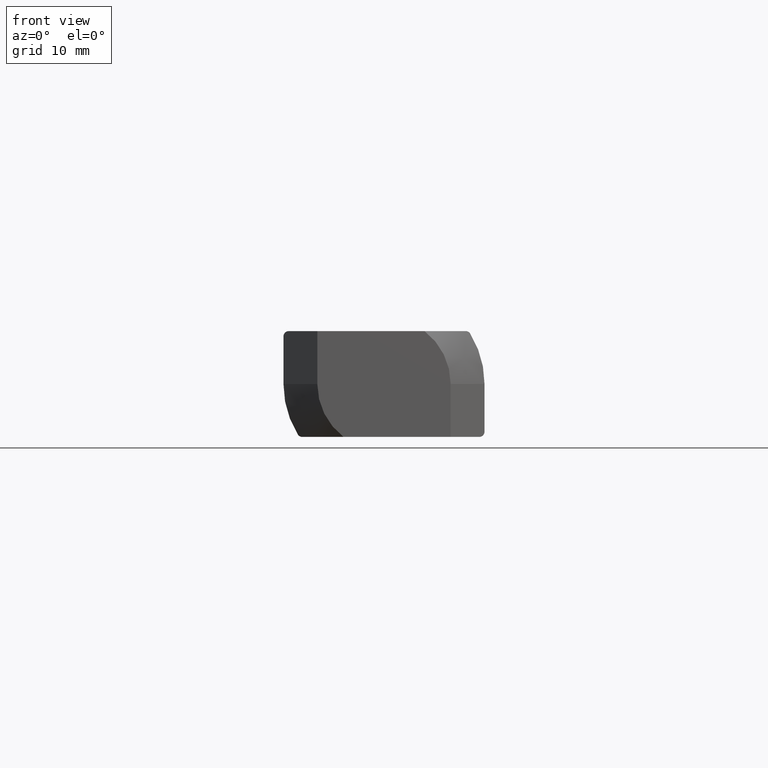
[diagram: clean part render]
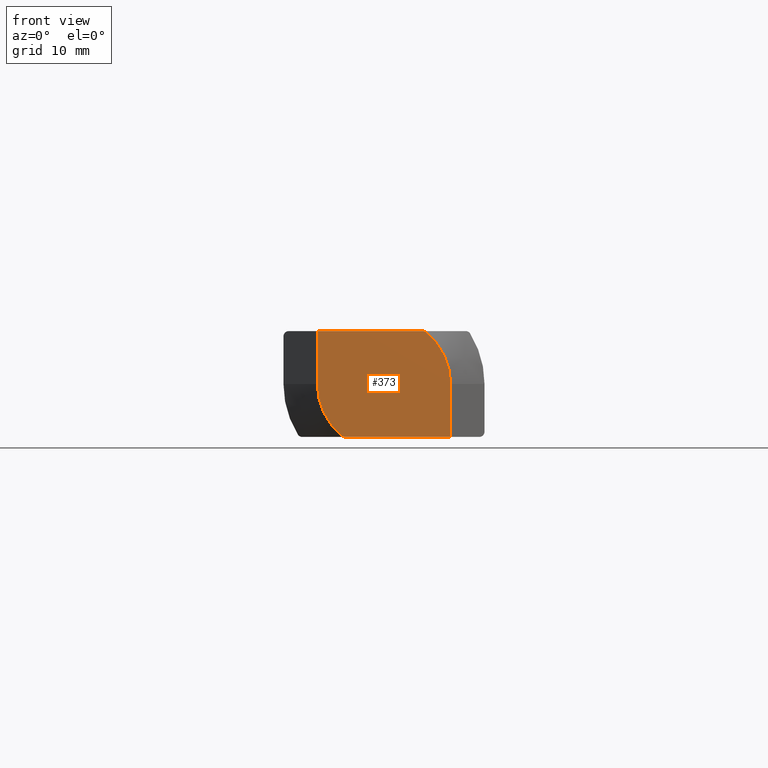
[diagram: same view with one face highlighted and labeled with its STEP entity id]
A machine part, front view. The second image highlights one B-rep face of the part: STEP entity #373.
In plain terms, the highlighted planar face has unit normal (0, 1, -0).
Its self-contained STEP definition (entity closure, byte-faithful):
#12 = DIRECTION ( 'NONE',  ( 0.000000000000000000, 0.000000000000000000, 1.000000000000000000 ) ) ;
#27 = VERTEX_POINT ( 'NONE', #187 ) ;
#48 = CIRCLE ( 'NONE', #557, 6.300000000000002487 ) ;
#49 = VERTEX_POINT ( 'NONE', #863 ) ;
#63 = AXIS2_PLACEMENT_3D ( 'NONE', #428, #638, #707 ) ;
#76 = DIRECTION ( 'NONE',  ( -0.000000000000000000, -0.000000000000000000, -1.000000000000000000 ) ) ;
#102 = EDGE_CURVE ( 'NONE', #671, #106, #378, .T. ) ;
#105 = ORIENTED_EDGE ( 'NONE', *, *, #891, .T. ) ;
#106 = VERTEX_POINT ( 'NONE', #158 ) ;
#127 = CARTESIAN_POINT ( 'NONE',  ( 3.832753579347366379, -4.349999999999999645, 5.000000000000000000 ) ) ;
#140 = VECTOR ( 'NONE', #912, 1000.000000000000000 ) ;
#147 = CARTESIAN_POINT ( 'NONE',  ( -6.300000000000001599, -4.350000000000000533, 0.000000000000000000 ) ) ;
#158 = CARTESIAN_POINT ( 'NONE',  ( 6.300000000000000711, -4.349999999999999645, 0.000000000000000000 ) ) ;
#186 = EDGE_CURVE ( 'NONE', #407, #865, #48, .T. ) ;
#187 = CARTESIAN_POINT ( 'NONE',  ( 6.299999999999998934, -4.349999999999999645, -5.000000000000000000 ) ) ;
#196 = LINE ( 'NONE', #480, #140 ) ;
#206 = FACE_OUTER_BOUND ( 'NONE', #743, .T. ) ;
#240 = CARTESIAN_POINT ( 'NONE',  ( 0.000000000000000000, -4.349999999999999645, 0.000000000000000000 ) ) ;
#288 = LINE ( 'NONE', #560, #765 ) ;
#298 = PLANE ( 'NONE',  #63 ) ;
#340 = CARTESIAN_POINT ( 'NONE',  ( -3.832753579347364603, -4.349999999999999645, -5.000000000000000000 ) ) ;
#351 = EDGE_CURVE ( 'NONE', #49, #407, #288, .T. ) ;
#370 = EDGE_CURVE ( 'NONE', #49, #671, #501, .T. ) ;
#373 = ADVANCED_FACE ( 'NONE', ( #206 ), #298, .F. ) ;
#377 = VECTOR ( 'NONE', #761, 1000.000000000000000 ) ;
#378 = CIRCLE ( 'NONE', #618, 6.300000000000002487 ) ;
#387 = ORIENTED_EDGE ( 'NONE', *, *, #186, .T. ) ;
#407 = VERTEX_POINT ( 'NONE', #147 ) ;
#428 = CARTESIAN_POINT ( 'NONE',  ( 6.299999999999998934, -4.349999999999999645, 5.000000000000000000 ) ) ;
#441 = ORIENTED_EDGE ( 'NONE', *, *, #370, .F. ) ;
#480 = CARTESIAN_POINT ( 'NONE',  ( 6.299999999999998934, -4.349999999999999645, 5.000000000000000000 ) ) ;
#501 = LINE ( 'NONE', #853, #918 ) ;
#507 = CARTESIAN_POINT ( 'NONE',  ( 0.000000000000000000, -4.349999999999999645, 0.000000000000000000 ) ) ;
#557 = AXIS2_PLACEMENT_3D ( 'NONE', #240, #732, #876 ) ;
#560 = CARTESIAN_POINT ( 'NONE',  ( -6.300000000000000711, -4.349999999999999645, 5.000000000000000000 ) ) ;
#618 = AXIS2_PLACEMENT_3D ( 'NONE', #507, #925, #12 ) ;
#638 = DIRECTION ( 'NONE',  ( 0.000000000000000000, 1.000000000000000000, -0.000000000000000000 ) ) ;
#646 = EDGE_CURVE ( 'NONE', #106, #27, #196, .T. ) ;
#671 = VERTEX_POINT ( 'NONE', #127 ) ;
#682 = ORIENTED_EDGE ( 'NONE', *, *, #102, .F. ) ;
#707 = DIRECTION ( 'NONE',  ( 0.000000000000000000, 0.000000000000000000, 1.000000000000000000 ) ) ;
#732 = DIRECTION ( 'NONE',  ( -0.000000000000000000, -1.000000000000000000, 0.000000000000000000 ) ) ;
#743 = EDGE_LOOP ( 'NONE', ( #757, #387, #105, #775, #682, #441 ) ) ;
#757 = ORIENTED_EDGE ( 'NONE', *, *, #351, .T. ) ;
#761 = DIRECTION ( 'NONE',  ( 1.000000000000000000, -0.000000000000000000, -0.000000000000000000 ) ) ;
#765 = VECTOR ( 'NONE', #76, 1000.000000000000000 ) ;
#775 = ORIENTED_EDGE ( 'NONE', *, *, #646, .F. ) ;
#847 = DIRECTION ( 'NONE',  ( 1.000000000000000000, -0.000000000000000000, -0.000000000000000000 ) ) ;
#851 = CARTESIAN_POINT ( 'NONE',  ( 6.299999999999998934, -4.349999999999999645, -5.000000000000000000 ) ) ;
#853 = CARTESIAN_POINT ( 'NONE',  ( 6.299999999999998934, -4.349999999999999645, 5.000000000000000000 ) ) ;
#863 = CARTESIAN_POINT ( 'NONE',  ( -6.300000000000000711, -4.349999999999999645, 5.000000000000000000 ) ) ;
#865 = VERTEX_POINT ( 'NONE', #340 ) ;
#876 = DIRECTION ( 'NONE',  ( 8.881784197001252323E-16, 0.000000000000000000, 1.000000000000000000 ) ) ;
#891 = EDGE_CURVE ( 'NONE', #865, #27, #928, .T. ) ;
#912 = DIRECTION ( 'NONE',  ( -0.000000000000000000, -0.000000000000000000, -1.000000000000000000 ) ) ;
#918 = VECTOR ( 'NONE', #847, 1000.000000000000000 ) ;
#925 = DIRECTION ( 'NONE',  ( 0.000000000000000000, 1.000000000000000000, -0.000000000000000000 ) ) ;
#928 = LINE ( 'NONE', #851, #377 ) ;